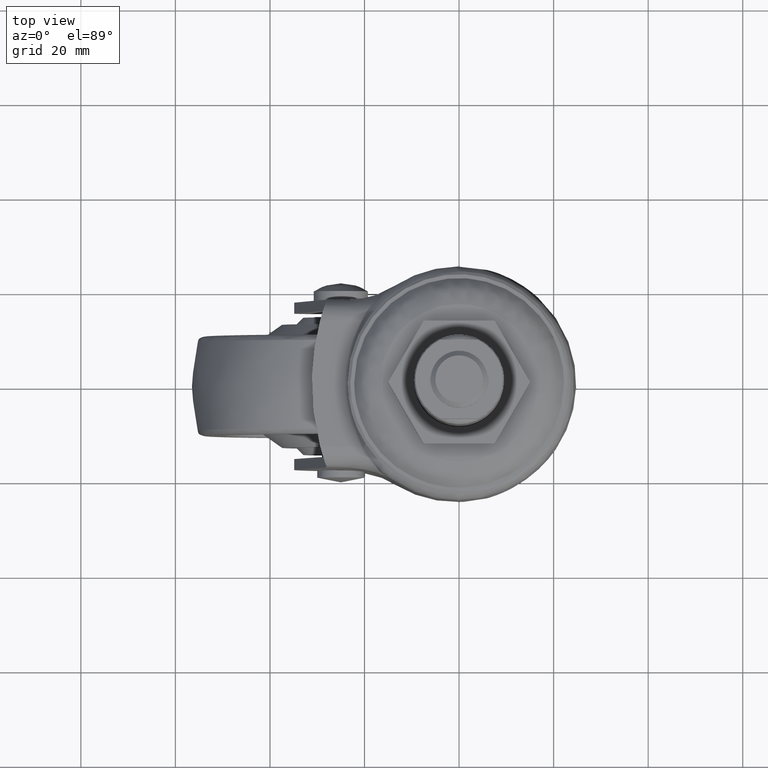
[diagram: clean part render]
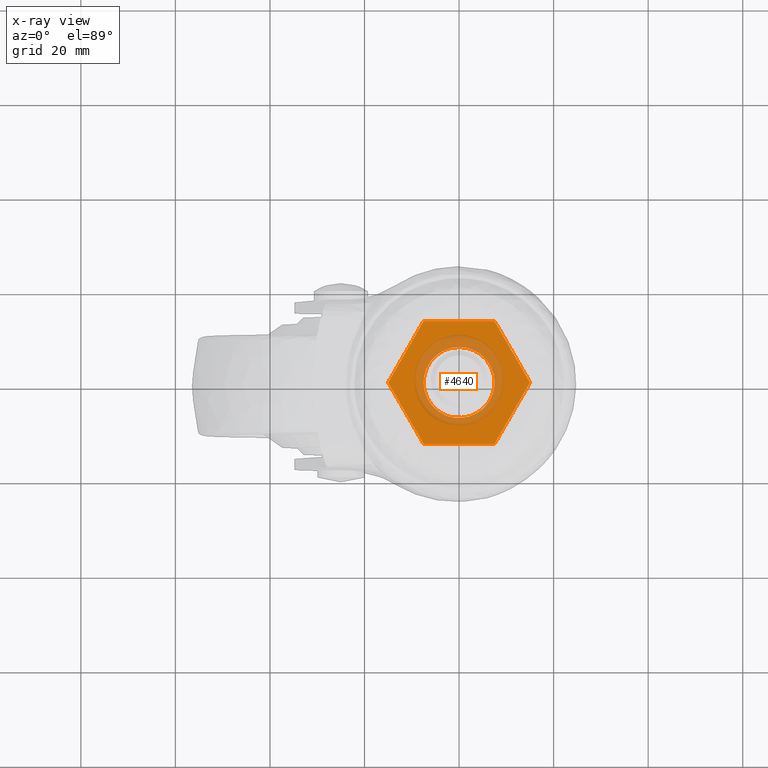
[diagram: x-ray — body ghosted, one internal face saturated and labeled with its STEP entity id]
A machine part, top view, then the same camera in x-ray: the body is ghosted and one INTERNAL B-rep face — a face not visible from any outside direction — is saturated and labeled: STEP entity #4640.
In plain terms, the highlighted face is a freeform B-spline surface patch.
Its self-contained STEP definition (entity closure, byte-faithful):
#2504=CARTESIAN_POINT('',(-0.931649422699687,-7.447507650221034,-4.000000000000085));
#2505=VERTEX_POINT('',#2504);
#2511=CARTESIAN_POINT('',(-7.505554000000100,0.0,-4.000000000000085));
#2512=VERTEX_POINT('',#2511);
#2513=CARTESIAN_POINT('',(-7.505554000000100,0.0,-4.000000000000085));
#2514=CARTESIAN_POINT('',(-7.505554000000100,-6.625142008833954,-4.000000000000086));
#2515=CARTESIAN_POINT('',(-0.931649422699687,-7.447507650221034,-4.000000000000085));
#2523=(BOUNDED_CURVE()B_SPLINE_CURVE(2,(#2513,#2514,#2515),.UNSPECIFIED.,.F.,.U.)B_SPLINE_CURVE_WITH_KNOTS((3,3),(0.500000000000000,0.728526071021264),.UNSPECIFIED.)CURVE()GEOMETRIC_REPRESENTATION_ITEM()RATIONAL_B_SPLINE_CURVE((1.0,0.732265053903161,0.954005430259127))REPRESENTATION_ITEM(''));
#2524=EDGE_CURVE('',#2512,#2505,#2523,.T.);
#2526=CARTESIAN_POINT('',(0.065497483646872,7.505268211500066,-4.000000000000085));
#2527=VERTEX_POINT('',#2526);
#2528=CARTESIAN_POINT('',(0.065497483646872,7.505268211500067,-4.000000000000085));
#2529=CARTESIAN_POINT('',(0.032749365436643,7.505554000000100,-4.000000000000085));
#2530=CARTESIAN_POINT('',(0.0,7.505554000000100,-4.000000000000085));
#2531=CARTESIAN_POINT('',(-7.505554000000100,7.505554000000100,-4.000000000000084));
#2532=CARTESIAN_POINT('',(-7.505554000000100,0.0,-4.000000000000085));
#2540=(BOUNDED_CURVE()B_SPLINE_CURVE(2,(#2528,#2529,#2530,#2531,#2532),.UNSPECIFIED.,.F.,.U.)B_SPLINE_CURVE_WITH_KNOTS((3,2,3),(0.248460105654174,0.250000000000000,0.500000000000000),.UNSPECIFIED.)CURVE()GEOMETRIC_REPRESENTATION_ITEM()RATIONAL_B_SPLINE_CURVE((0.996414028075322,0.998195901553674,1.0,0.707106781186547,1.0))REPRESENTATION_ITEM(''));
#2541=EDGE_CURVE('',#2527,#2512,#2540,.T.);
#2621=CARTESIAN_POINT('',(7.505554000000100,0.0,-4.000000000000085));
#2622=VERTEX_POINT('',#2621);
#2623=CARTESIAN_POINT('',(7.505554000000100,0.0,-4.000000000000085));
#2624=CARTESIAN_POINT('',(7.505554000000100,7.440339821468244,-4.000000000000085));
#2625=CARTESIAN_POINT('',(0.065497483646872,7.505268211500066,-4.000000000000084));
#2633=(BOUNDED_CURVE()B_SPLINE_CURVE(2,(#2623,#2624,#2625),.UNSPECIFIED.,.F.,.U.)B_SPLINE_CURVE_WITH_KNOTS((3,3),(0.0,0.248460105654175),.UNSPECIFIED.)CURVE()GEOMETRIC_REPRESENTATION_ITEM()RATIONAL_B_SPLINE_CURVE((1.0,0.708910879632873,0.996414028075323))REPRESENTATION_ITEM(''));
#2634=EDGE_CURVE('',#2622,#2527,#2633,.T.);
#2636=CARTESIAN_POINT('',(-0.931649422699687,-7.447507650221034,-4.000000000000084));
#2637=CARTESIAN_POINT('',(-0.467632998248215,-7.505554000000100,-4.000000000000085));
#2638=CARTESIAN_POINT('',(0.0,-7.505554000000100,-4.000000000000085));
#2639=CARTESIAN_POINT('',(7.505554000000100,-7.505554000000100,-4.000000000000084));
#2640=CARTESIAN_POINT('',(7.505554000000100,0.0,-4.000000000000085));
#2648=(BOUNDED_CURVE()B_SPLINE_CURVE(2,(#2636,#2637,#2638,#2639,#2640),.UNSPECIFIED.,.F.,.U.)B_SPLINE_CURVE_WITH_KNOTS((3,2,3),(0.728526071021264,0.750000000000000,1.0),.UNSPECIFIED.)CURVE()GEOMETRIC_REPRESENTATION_ITEM()RATIONAL_B_SPLINE_CURVE((0.954005430259127,0.974841727283386,1.0,0.707106781186547,1.0))REPRESENTATION_ITEM(''));
#2649=EDGE_CURVE('',#2505,#2622,#2648,.T.);
#4585=CARTESIAN_POINT('',(-16.510717094765251,-14.298699949606950,-4.000000000000085));
#4586=CARTESIAN_POINT('',(16.510717363184760,-14.298699949606950,-4.000000000000085));
#4587=CARTESIAN_POINT('',(-16.510717094765251,14.298700646981301,-4.000000000000085));
#4588=CARTESIAN_POINT('',(16.510717363184760,14.298700646981301,-4.000000000000085));
#4589=B_SPLINE_SURFACE_WITH_KNOTS('',1,1,((#4585,#4587),(#4586,#4588)),.UNSPECIFIED.,.F.,.F.,.U.,(2,2),(2,2),(0.0,33.021434457950008),(0.0,28.597400596588251),.UNSPECIFIED.);
#4590=CARTESIAN_POINT('',(-7.505553000000000,-13.0,-4.000000000000116));
#4591=VERTEX_POINT('',#4590);
#4592=CARTESIAN_POINT('',(-15.011107000000001,0.0,-4.000000000000116));
#4593=VERTEX_POINT('',#4592);
#4594=CARTESIAN_POINT('',(-7.505553000000000,-13.0,-4.000000000000116));
#4595=CARTESIAN_POINT('',(-15.011107000000001,0.0,-4.000000000000116));
#4596=QUASI_UNIFORM_CURVE('',1,(#4594,#4595),.UNSPECIFIED.,.F.,.U.);
#4597=EDGE_CURVE('',#4591,#4593,#4596,.T.);
#4598=ORIENTED_EDGE('',*,*,#4597,.T.);
#4599=CARTESIAN_POINT('',(-7.505553000000000,13.0,-4.000000000000116));
#4600=VERTEX_POINT('',#4599);
#4601=CARTESIAN_POINT('',(-15.011107000000001,0.0,-4.000000000000116));
#4602=CARTESIAN_POINT('',(-7.505553000000000,13.0,-4.000000000000116));
#4603=QUASI_UNIFORM_CURVE('',1,(#4601,#4602),.UNSPECIFIED.,.F.,.U.);
#4604=EDGE_CURVE('',#4593,#4600,#4603,.T.);
#4605=ORIENTED_EDGE('',*,*,#4604,.T.);
#4606=CARTESIAN_POINT('',(7.505554000000000,13.0,-4.000000000000116));
#4607=VERTEX_POINT('',#4606);
#4608=CARTESIAN_POINT('',(-7.505553000000000,13.0,-4.000000000000116));
#4609=CARTESIAN_POINT('',(7.505554000000000,13.0,-4.000000000000116));
#4610=QUASI_UNIFORM_CURVE('',1,(#4608,#4609),.UNSPECIFIED.,.F.,.U.);
#4611=EDGE_CURVE('',#4600,#4607,#4610,.T.);
#4612=ORIENTED_EDGE('',*,*,#4611,.T.);
#4613=CARTESIAN_POINT('',(15.011107000000001,0.0,-4.000000000000116));
#4614=VERTEX_POINT('',#4613);
#4615=CARTESIAN_POINT('',(7.505554000000000,13.0,-4.000000000000116));
#4616=CARTESIAN_POINT('',(15.011107000000001,0.0,-4.000000000000116));
#4617=QUASI_UNIFORM_CURVE('',1,(#4615,#4616),.UNSPECIFIED.,.F.,.U.);
#4618=EDGE_CURVE('',#4607,#4614,#4617,.T.);
#4619=ORIENTED_EDGE('',*,*,#4618,.T.);
#4620=CARTESIAN_POINT('',(7.505554000000000,-13.0,-4.000000000000116));
#4621=VERTEX_POINT('',#4620);
#4622=CARTESIAN_POINT('',(15.011107000000001,0.0,-4.000000000000116));
#4623=CARTESIAN_POINT('',(7.505554000000000,-13.0,-4.000000000000116));
#4624=QUASI_UNIFORM_CURVE('',1,(#4622,#4623),.UNSPECIFIED.,.F.,.U.);
#4625=EDGE_CURVE('',#4614,#4621,#4624,.T.);
#4626=ORIENTED_EDGE('',*,*,#4625,.T.);
#4627=CARTESIAN_POINT('',(7.505554000000000,-13.0,-4.000000000000116));
#4628=CARTESIAN_POINT('',(-7.505553000000000,-13.0,-4.000000000000116));
#4629=QUASI_UNIFORM_CURVE('',1,(#4627,#4628),.UNSPECIFIED.,.F.,.U.);
#4630=EDGE_CURVE('',#4621,#4591,#4629,.T.);
#4631=ORIENTED_EDGE('',*,*,#4630,.T.);
#4632=EDGE_LOOP('',(#4598,#4605,#4612,#4619,#4626,#4631));
#4633=FACE_OUTER_BOUND('',#4632,.T.);
#4634=ORIENTED_EDGE('',*,*,#2634,.T.);
#4635=ORIENTED_EDGE('',*,*,#2541,.T.);
#4636=ORIENTED_EDGE('',*,*,#2524,.T.);
#4637=ORIENTED_EDGE('',*,*,#2649,.T.);
#4638=EDGE_LOOP('',(#4634,#4635,#4636,#4637));
#4639=FACE_BOUND('',#4638,.T.);
#4640=ADVANCED_FACE('',(#4633,#4639),#4589,.F.);